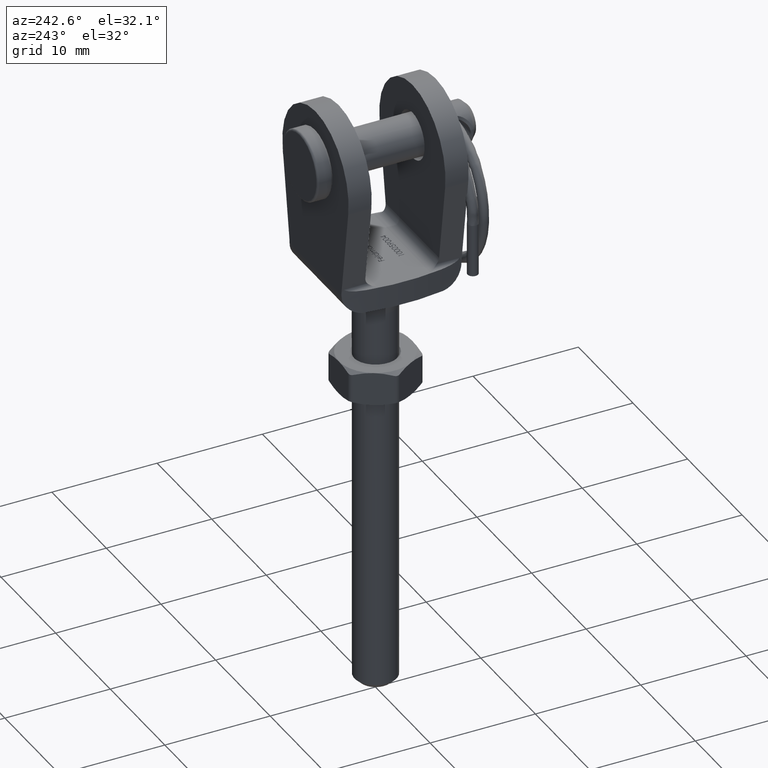
[diagram: clean part render]
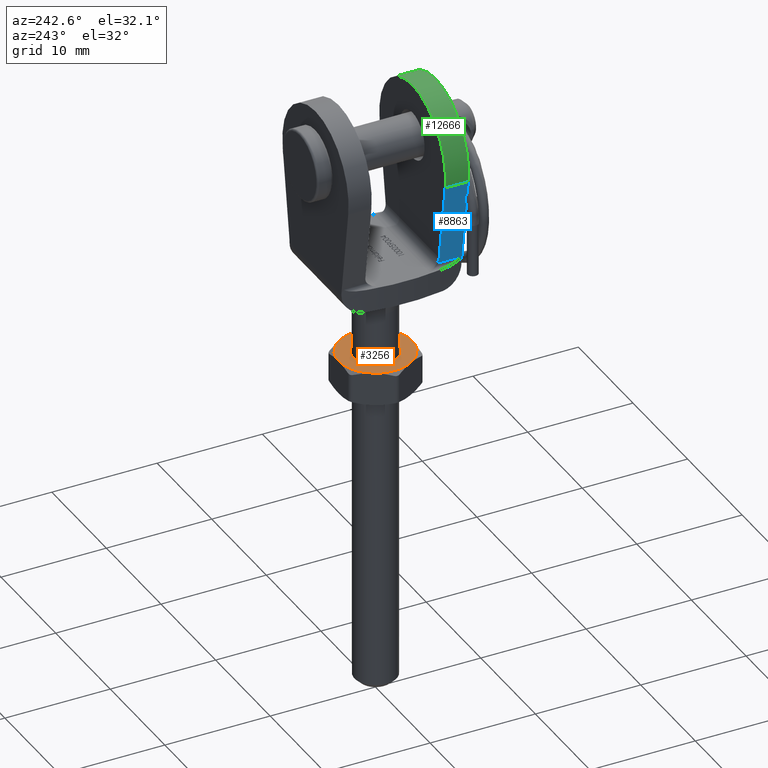
[diagram: same view with three faces highlighted in distinct colors, each labeled with its STEP entity id]
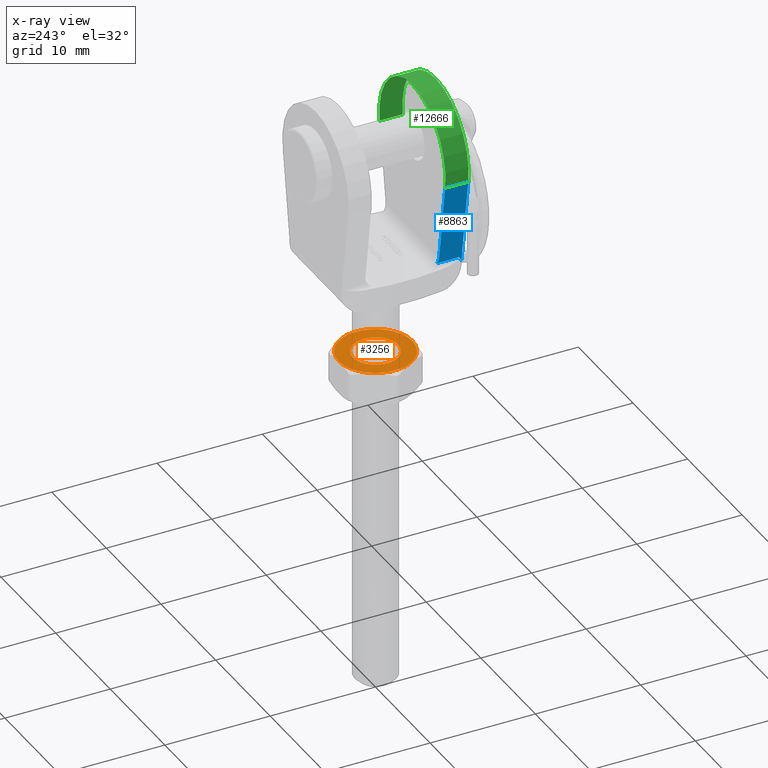
[diagram: x-ray of the same camera — body ghosted, the three highlighted faces saturated]
A machine part, auxiliary view with three faces highlighted in distinct colors.
The next image is the same camera in x-ray (body ghosted, the three faces saturated) — at least one of them is partly hidden behind the body in this view.
Their STEP definitions:

[orange] entity #3256 — the highlighted planar face has unit normal (0, 0, -1).
#110 = DIRECTION ( 'NONE',  ( 0.000000000000000000, 1.000000000000000000, 0.000000000000000000 ) ) ;
#214 = CARTESIAN_POINT ( 'NONE',  ( 0.000000000000000000, -1.600000000000000089, 0.000000000000000000 ) ) ;
#288 = AXIS2_PLACEMENT_3D ( 'NONE', #14467, #3380, #15807 ) ;
#420 = DIRECTION ( 'NONE',  ( -8.881784197001252323E-16, 0.000000000000000000, 1.000000000000000000 ) ) ;
#546 = CIRCLE ( 'NONE', #6724, 3.499999999999999112 ) ;
#1028 = FACE_OUTER_BOUND ( 'NONE', #6027, .T. ) ;
#1104 = EDGE_LOOP ( 'NONE', ( #14060 ) ) ;
#1324 = CIRCLE ( 'NONE', #2376, 3.499999999999999112 ) ;
#1611 = VERTEX_POINT ( 'NONE', #18873 ) ;
#1798 = CIRCLE ( 'NONE', #10078, 2.149999999999995470 ) ;
#2376 = AXIS2_PLACEMENT_3D ( 'NONE', #7470, #16722, #4414 ) ;
#3225 = EDGE_CURVE ( 'NONE', #4896, #1611, #546, .T. ) ;
#3228 = DIRECTION ( 'NONE',  ( 3.552713678800500929E-15, 0.000000000000000000, 1.000000000000000000 ) ) ;
#3256 = ADVANCED_FACE ( 'NONE', ( #7820, #1028 ), #9419, .F. ) ;
#3380 = DIRECTION ( 'NONE',  ( 0.000000000000000000, -1.000000000000000000, 0.000000000000000000 ) ) ;
#3666 = AXIS2_PLACEMENT_3D ( 'NONE', #214, #15700, #7853 ) ;
#3701 = VERTEX_POINT ( 'NONE', #5986 ) ;
#4226 = CIRCLE ( 'NONE', #3666, 3.499999999999999112 ) ;
#4414 = DIRECTION ( 'NONE',  ( 0.000000000000000000, 0.000000000000000000, 1.000000000000000000 ) ) ;
#4425 = CARTESIAN_POINT ( 'NONE',  ( -3.755786496842898071E-16, -1.600000000000000089, -3.499999999999999112 ) ) ;
#4802 = DIRECTION ( 'NONE',  ( -0.000000000000000000, -1.000000000000000000, -0.000000000000000000 ) ) ;
#4896 = VERTEX_POINT ( 'NONE', #9088 ) ;
#5986 = CARTESIAN_POINT ( 'NONE',  ( 0.000000000000000000, -1.600000000000000089, 2.149999999999995470 ) ) ;
#6027 = EDGE_LOOP ( 'NONE', ( #19517, #19813, #12651, #7441, #16311, #6500 ) ) ;
#6125 = EDGE_CURVE ( 'NONE', #19972, #11254, #15422, .T. ) ;
#6500 = ORIENTED_EDGE ( 'NONE', *, *, #3225, .T. ) ;
#6724 = AXIS2_PLACEMENT_3D ( 'NONE', #10803, #7813, #3228 ) ;
#7435 = EDGE_CURVE ( 'NONE', #19411, #17717, #4226, .T. ) ;
#7441 = ORIENTED_EDGE ( 'NONE', *, *, #6125, .T. ) ;
#7470 = CARTESIAN_POINT ( 'NONE',  ( 0.000000000000000000, -1.600000000000000089, 0.000000000000000000 ) ) ;
#7603 = CARTESIAN_POINT ( 'NONE',  ( 0.000000000000000000, -1.600000000000000089, 0.000000000000000000 ) ) ;
#7813 = DIRECTION ( 'NONE',  ( -0.000000000000000000, -1.000000000000000000, -0.000000000000000000 ) ) ;
#7820 = FACE_BOUND ( 'NONE', #1104, .T. ) ;
#7853 = DIRECTION ( 'NONE',  ( 0.000000000000000000, 0.000000000000000000, 1.000000000000000000 ) ) ;
#8000 = CARTESIAN_POINT ( 'NONE',  ( 0.000000000000000000, -1.600000000000000089, 0.000000000000000000 ) ) ;
#8316 = DIRECTION ( 'NONE',  ( 1.776356839400250465E-15, 0.000000000000000000, 1.000000000000000000 ) ) ;
#8582 = CARTESIAN_POINT ( 'NONE',  ( -3.031088913245534755, -1.600000000000000089, -1.749999999999999556 ) ) ;
#9060 = EDGE_CURVE ( 'NONE', #11254, #4896, #17274, .T. ) ;
#9088 = CARTESIAN_POINT ( 'NONE',  ( 3.031088913245534755, -1.600000000000000089, -1.749999999999999112 ) ) ;
#9419 = PLANE ( 'NONE',  #16334 ) ;
#9914 = AXIS2_PLACEMENT_3D ( 'NONE', #18913, #17488, #8316 ) ;
#10078 = AXIS2_PLACEMENT_3D ( 'NONE', #7603, #16994, #10732 ) ;
#10732 = DIRECTION ( 'NONE',  ( 0.000000000000000000, 0.000000000000000000, 1.000000000000000000 ) ) ;
#10803 = CARTESIAN_POINT ( 'NONE',  ( 0.000000000000000000, -1.600000000000000089, 0.000000000000000000 ) ) ;
#11254 = VERTEX_POINT ( 'NONE', #4425 ) ;
#12369 = CARTESIAN_POINT ( 'NONE',  ( -3.031088913245534755, -1.600000000000000089, 1.749999999999999556 ) ) ;
#12634 = EDGE_CURVE ( 'NONE', #17717, #19972, #1324, .T. ) ;
#12651 = ORIENTED_EDGE ( 'NONE', *, *, #12634, .T. ) ;
#13863 = CARTESIAN_POINT ( 'NONE',  ( 0.000000000000000000, -1.600000000000000089, 0.000000000000000000 ) ) ;
#14037 = CIRCLE ( 'NONE', #16676, 3.499999999999999112 ) ;
#14060 = ORIENTED_EDGE ( 'NONE', *, *, #18838, .T. ) ;
#14467 = CARTESIAN_POINT ( 'NONE',  ( 0.000000000000000000, -1.600000000000000089, 0.000000000000000000 ) ) ;
#14508 = CARTESIAN_POINT ( 'NONE',  ( -7.511572993685794170E-16, -1.600000000000000089, 3.499999999999999112 ) ) ;
#15422 = CIRCLE ( 'NONE', #9914, 3.499999999999999112 ) ;
#15700 = DIRECTION ( 'NONE',  ( -0.000000000000000000, -1.000000000000000000, -0.000000000000000000 ) ) ;
#15807 = DIRECTION ( 'NONE',  ( 0.000000000000000000, 0.000000000000000000, -1.000000000000000000 ) ) ;
#15849 = EDGE_CURVE ( 'NONE', #1611, #19411, #14037, .T. ) ;
#16311 = ORIENTED_EDGE ( 'NONE', *, *, #9060, .T. ) ;
#16334 = AXIS2_PLACEMENT_3D ( 'NONE', #13863, #110, #18748 ) ;
#16676 = AXIS2_PLACEMENT_3D ( 'NONE', #8000, #4802, #420 ) ;
#16722 = DIRECTION ( 'NONE',  ( -0.000000000000000000, -1.000000000000000000, -0.000000000000000000 ) ) ;
#16994 = DIRECTION ( 'NONE',  ( 0.000000000000000000, 1.000000000000000000, 0.000000000000000000 ) ) ;
#17274 = CIRCLE ( 'NONE', #288, 3.499999999999999112 ) ;
#17488 = DIRECTION ( 'NONE',  ( -0.000000000000000000, -1.000000000000000000, -0.000000000000000000 ) ) ;
#17717 = VERTEX_POINT ( 'NONE', #12369 ) ;
#18748 = DIRECTION ( 'NONE',  ( 0.000000000000000000, -0.000000000000000000, 1.000000000000000000 ) ) ;
#18838 = EDGE_CURVE ( 'NONE', #3701, #3701, #1798, .T. ) ;
#18873 = CARTESIAN_POINT ( 'NONE',  ( 3.031088913245534755, -1.600000000000000089, 1.749999999999998668 ) ) ;
#18913 = CARTESIAN_POINT ( 'NONE',  ( 0.000000000000000000, -1.600000000000000089, 0.000000000000000000 ) ) ;
#19411 = VERTEX_POINT ( 'NONE', #14508 ) ;
#19517 = ORIENTED_EDGE ( 'NONE', *, *, #15849, .T. ) ;
#19813 = ORIENTED_EDGE ( 'NONE', *, *, #7435, .T. ) ;
#19972 = VERTEX_POINT ( 'NONE', #8582 ) ;

[blue] entity #8863 — the highlighted planar face has unit normal (-0.9895, 0, -0.1445).
#362 =( BOUNDED_CURVE ( )  B_SPLINE_CURVE ( 3, ( #9890, #16109, #5412, #16310 ),
 .UNSPECIFIED., .F., .T. ) 
 B_SPLINE_CURVE_WITH_KNOTS ( ( 4, 4 ),
 ( 1.570796326794895892, 2.143853377382253900 ),
 .UNSPECIFIED. ) 
 CURVE ( )  GEOMETRIC_REPRESENTATION_ITEM ( )  RATIONAL_B_SPLINE_CURVE ( ( 1.000000000000000000, 0.9728205169849433176, 0.9728205169849433176, 1.000000000000000000 ) ) 
 REPRESENTATION_ITEM ( '' )  );
#1279 = CARTESIAN_POINT ( 'NONE',  ( -4.772794400429187789, -5.614880909976275980, 0.1561001162756971428 ) ) ;
#1341 = CARTESIAN_POINT ( 'NONE',  ( -4.750000000000000888, -5.699999999999996625, 5.817072295949930384E-16 ) ) ;
#1467 = PLANE ( 'NONE',  #7530 ) ;
#2110 = DIRECTION ( 'NONE',  ( -0.1444918574591643468, 0.000000000000000000, 0.9895059894351324603 ) ) ;
#2503 = FACE_OUTER_BOUND ( 'NONE', #19005, .T. ) ;
#2791 = CARTESIAN_POINT ( 'NONE',  ( -5.999999999999999112, -5.700000000000000178, 8.560222759566077144 ) ) ;
#2987 = CARTESIAN_POINT ( 'NONE',  ( -4.896024237348626684, -3.500000000000000000, 1.000000000000002665 ) ) ;
#3029 = ORIENTED_EDGE ( 'NONE', *, *, #12791, .T. ) ;
#4369 = VERTEX_POINT ( 'NONE', #2987 ) ;
#4748 = CARTESIAN_POINT ( 'NONE',  ( -4.816849420254873948, -3.340247361246006186, 0.4577967429836640734 ) ) ;
#4877 = CARTESIAN_POINT ( 'NONE',  ( -5.999999999999998224, -5.700000000000000178, 8.560222759566078921 ) ) ;
#4960 = LINE ( 'NONE', #9962, #5437 ) ;
#5412 = CARTESIAN_POINT ( 'NONE',  ( -4.840613289051514556, -3.445261352269065380, 0.6205359514063439885 ) ) ;
#5437 = VECTOR ( 'NONE', #14585, 1000.000000000000000 ) ;
#6757 = EDGE_CURVE ( 'NONE', #4369, #15176, #4960, .T. ) ;
#6857 = ORIENTED_EDGE ( 'NONE', *, *, #11597, .T. ) ;
#7238 = CARTESIAN_POINT ( 'NONE',  ( -4.750000000000000888, -5.699999999999996625, 5.817072295949930384E-16 ) ) ;
#7491 = CARTESIAN_POINT ( 'NONE',  ( -4.795077807779697388, -5.529626620147291227, 0.3087008608857116365 ) ) ;
#7530 = AXIS2_PLACEMENT_3D ( 'NONE', #2791, #19773, #9048 ) ;
#7762 = ORIENTED_EDGE ( 'NONE', *, *, #9459, .T. ) ;
#8167 = CARTESIAN_POINT ( 'NONE',  ( -5.999999999999999112, -5.700000000000000178, 8.560222759566077144 ) ) ;
#8521 = CARTESIAN_POINT ( 'NONE',  ( -5.999999999999998224, -3.500000000000000000, 8.560222759566078921 ) ) ;
#8533 = CARTESIAN_POINT ( 'NONE',  ( -4.816849420254873948, -5.700000000000000178, 0.4577967429836640734 ) ) ;
#8827 = EDGE_CURVE ( 'NONE', #16747, #14015, #9401, .T. ) ;
#8863 = ADVANCED_FACE ( 'NONE', ( #2503 ), #1467, .T. ) ;
#9048 = DIRECTION ( 'NONE',  ( -0.1444918574591643745, 0.000000000000000000, 0.9895059894351324603 ) ) ;
#9401 =( BOUNDED_CURVE ( )  B_SPLINE_CURVE ( 3, ( #12148, #7491, #1279, #1341 ),
 .UNSPECIFIED., .F., .F. ) 
 B_SPLINE_CURVE_WITH_KNOTS ( ( 4, 4 ),
 ( 0.2496578112368783298, 0.2616547921481140460 ),
 .UNSPECIFIED. ) 
 CURVE ( )  GEOMETRIC_REPRESENTATION_ITEM ( )  RATIONAL_B_SPLINE_CURVE ( ( 1.000000000000000000, 0.9999880060733815634, 0.9999880060733815634, 1.000000000000000000 ) ) 
 REPRESENTATION_ITEM ( '' )  );
#9459 = EDGE_CURVE ( 'NONE', #18777, #16747, #17971, .T. ) ;
#9688 = ORIENTED_EDGE ( 'NONE', *, *, #8827, .T. ) ;
#9890 = CARTESIAN_POINT ( 'NONE',  ( -4.896024237348626684, -3.500000000000000000, 1.000000000000002665 ) ) ;
#9962 = CARTESIAN_POINT ( 'NONE',  ( -5.999999999999999112, -3.500000000000000000, 8.560222759566077144 ) ) ;
#9981 = VECTOR ( 'NONE', #19392, 1000.000000000000000 ) ;
#10053 = CARTESIAN_POINT ( 'NONE',  ( -4.816849420254873948, -5.444240198114113305, 0.4577967429836663493 ) ) ;
#10784 = VECTOR ( 'NONE', #12849, 1000.000000000000000 ) ;
#10897 = CARTESIAN_POINT ( 'NONE',  ( -5.999999999999998224, -5.700000000000000178, 8.560222759566078921 ) ) ;
#11597 = EDGE_CURVE ( 'NONE', #4369, #18777, #362, .T. ) ;
#12148 = CARTESIAN_POINT ( 'NONE',  ( -4.816849420254873948, -5.444240198114113305, 0.4577967429836663493 ) ) ;
#12440 = VERTEX_POINT ( 'NONE', #10897 ) ;
#12615 = LINE ( 'NONE', #8167, #13317 ) ;
#12791 = EDGE_CURVE ( 'NONE', #12440, #15176, #12979, .T. ) ;
#12849 = DIRECTION ( 'NONE',  ( -0.000000000000000000, 1.000000000000000000, -0.000000000000000000 ) ) ;
#12979 = LINE ( 'NONE', #4877, #10784 ) ;
#13317 = VECTOR ( 'NONE', #2110, 1000.000000000000000 ) ;
#14015 = VERTEX_POINT ( 'NONE', #7238 ) ;
#14077 = ORIENTED_EDGE ( 'NONE', *, *, #14090, .T. ) ;
#14090 = EDGE_CURVE ( 'NONE', #14015, #12440, #12615, .T. ) ;
#14585 = DIRECTION ( 'NONE',  ( -0.1444918574591643468, 0.000000000000000000, 0.9895059894351324603 ) ) ;
#15176 = VERTEX_POINT ( 'NONE', #8521 ) ;
#16109 = CARTESIAN_POINT ( 'NONE',  ( -4.867742245767715303, -3.500000000000000000, 0.8063198815865945113 ) ) ;
#16310 = CARTESIAN_POINT ( 'NONE',  ( -4.816849420254873948, -3.340247361246006186, 0.4577967429836640734 ) ) ;
#16747 = VERTEX_POINT ( 'NONE', #10053 ) ;
#17971 = LINE ( 'NONE', #8533, #9981 ) ;
#18729 = ORIENTED_EDGE ( 'NONE', *, *, #6757, .F. ) ;
#18777 = VERTEX_POINT ( 'NONE', #4748 ) ;
#19005 = EDGE_LOOP ( 'NONE', ( #18729, #6857, #7762, #9688, #14077, #3029 ) ) ;
#19392 = DIRECTION ( 'NONE',  ( -0.000000000000000000, -1.000000000000000000, -0.000000000000000000 ) ) ;
#19773 = DIRECTION ( 'NONE',  ( -0.9895059894351324603, 0.000000000000000000, -0.1444918574591643745 ) ) ;

[green] entity #12666 — the highlighted cylindrical surface (partial cylindrical patch) has radius 6.0636 mm, axis along (0, 1, 0).
#646 = DIRECTION ( 'NONE',  ( 0.000000000000000000, 0.000000000000000000, -1.000000000000000000 ) ) ;
#1446 = CARTESIAN_POINT ( 'NONE',  ( 8.659864886992019307E-16, -5.700000000000000178, 9.436368183657842579 ) ) ;
#1868 = DIRECTION ( 'NONE',  ( 0.000000000000000000, 0.000000000000000000, -1.000000000000000000 ) ) ;
#2457 = CARTESIAN_POINT ( 'NONE',  ( 6.000000000000000000, -5.700000000000000178, 8.560222759566077144 ) ) ;
#2831 = DIRECTION ( 'NONE',  ( -0.000000000000000000, 1.000000000000000000, -0.000000000000000000 ) ) ;
#4460 = DIRECTION ( 'NONE',  ( -0.000000000000000000, 1.000000000000000000, -0.000000000000000000 ) ) ;
#4851 = AXIS2_PLACEMENT_3D ( 'NONE', #1446, #2831, #16586 ) ;
#4877 = CARTESIAN_POINT ( 'NONE',  ( -5.999999999999998224, -5.700000000000000178, 8.560222759566078921 ) ) ;
#7209 = EDGE_CURVE ( 'NONE', #15176, #15858, #9091, .T. ) ;
#7291 = EDGE_LOOP ( 'NONE', ( #17750, #13618, #11883, #10582 ) ) ;
#7416 = VECTOR ( 'NONE', #17967, 1000.000000000000000 ) ;
#8521 = CARTESIAN_POINT ( 'NONE',  ( -5.999999999999998224, -3.500000000000000000, 8.560222759566078921 ) ) ;
#9091 = CIRCLE ( 'NONE', #13849, 6.063631816342160086 ) ;
#9157 = EDGE_CURVE ( 'NONE', #12440, #12964, #11263, .T. ) ;
#10119 = CARTESIAN_POINT ( 'NONE',  ( 8.659864886992019307E-16, -5.700000000000000178, 9.436368183657842579 ) ) ;
#10582 = ORIENTED_EDGE ( 'NONE', *, *, #12244, .T. ) ;
#10784 = VECTOR ( 'NONE', #12849, 1000.000000000000000 ) ;
#10897 = CARTESIAN_POINT ( 'NONE',  ( -5.999999999999998224, -5.700000000000000178, 8.560222759566078921 ) ) ;
#11263 = CIRCLE ( 'NONE', #11441, 6.063631816342160086 ) ;
#11441 = AXIS2_PLACEMENT_3D ( 'NONE', #10119, #11638, #646 ) ;
#11638 = DIRECTION ( 'NONE',  ( -0.000000000000000000, 1.000000000000000000, -0.000000000000000000 ) ) ;
#11883 = ORIENTED_EDGE ( 'NONE', *, *, #9157, .T. ) ;
#12244 = EDGE_CURVE ( 'NONE', #12964, #15858, #15187, .T. ) ;
#12440 = VERTEX_POINT ( 'NONE', #10897 ) ;
#12666 = ADVANCED_FACE ( 'NONE', ( #17280 ), #14886, .T. ) ;
#12791 = EDGE_CURVE ( 'NONE', #12440, #15176, #12979, .T. ) ;
#12849 = DIRECTION ( 'NONE',  ( -0.000000000000000000, 1.000000000000000000, -0.000000000000000000 ) ) ;
#12964 = VERTEX_POINT ( 'NONE', #17647 ) ;
#12979 = LINE ( 'NONE', #4877, #10784 ) ;
#13618 = ORIENTED_EDGE ( 'NONE', *, *, #12791, .F. ) ;
#13849 = AXIS2_PLACEMENT_3D ( 'NONE', #15131, #4460, #1868 ) ;
#14119 = CARTESIAN_POINT ( 'NONE',  ( 6.000000000000000000, -3.500000000000000000, 8.560222759566077144 ) ) ;
#14886 = CYLINDRICAL_SURFACE ( 'NONE', #4851, 6.063631816342160086 ) ;
#15131 = CARTESIAN_POINT ( 'NONE',  ( 8.659864886992019307E-16, -3.500000000000000000, 9.436368183657842579 ) ) ;
#15176 = VERTEX_POINT ( 'NONE', #8521 ) ;
#15187 = LINE ( 'NONE', #2457, #7416 ) ;
#15858 = VERTEX_POINT ( 'NONE', #14119 ) ;
#16586 = DIRECTION ( 'NONE',  ( 0.000000000000000000, 0.000000000000000000, 1.000000000000000000 ) ) ;
#17280 = FACE_OUTER_BOUND ( 'NONE', #7291, .T. ) ;
#17647 = CARTESIAN_POINT ( 'NONE',  ( 6.000000000000000000, -5.700000000000000178, 8.560222759566077144 ) ) ;
#17750 = ORIENTED_EDGE ( 'NONE', *, *, #7209, .F. ) ;
#17967 = DIRECTION ( 'NONE',  ( -0.000000000000000000, 1.000000000000000000, -0.000000000000000000 ) ) ;